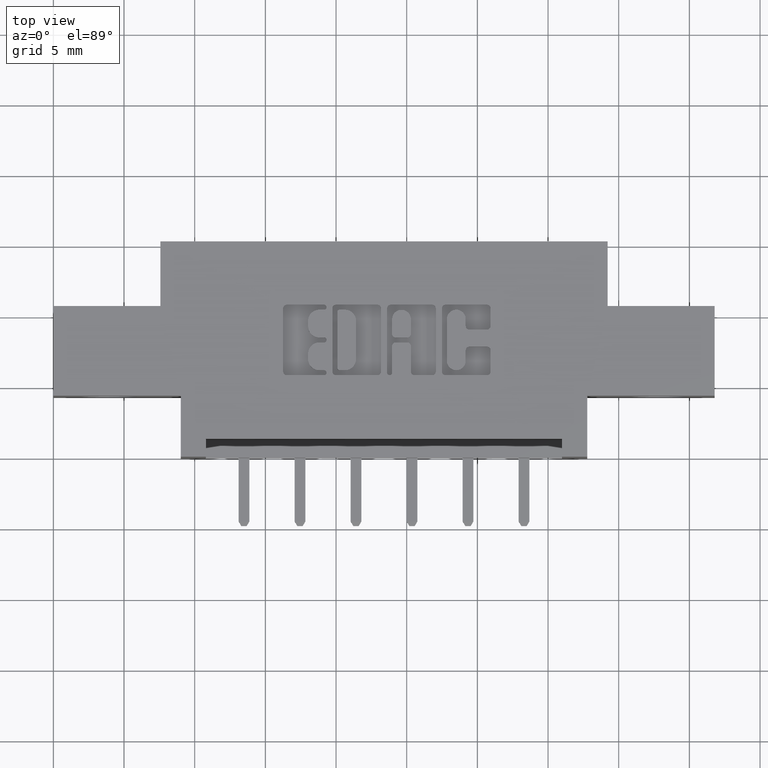
[diagram: clean part render]
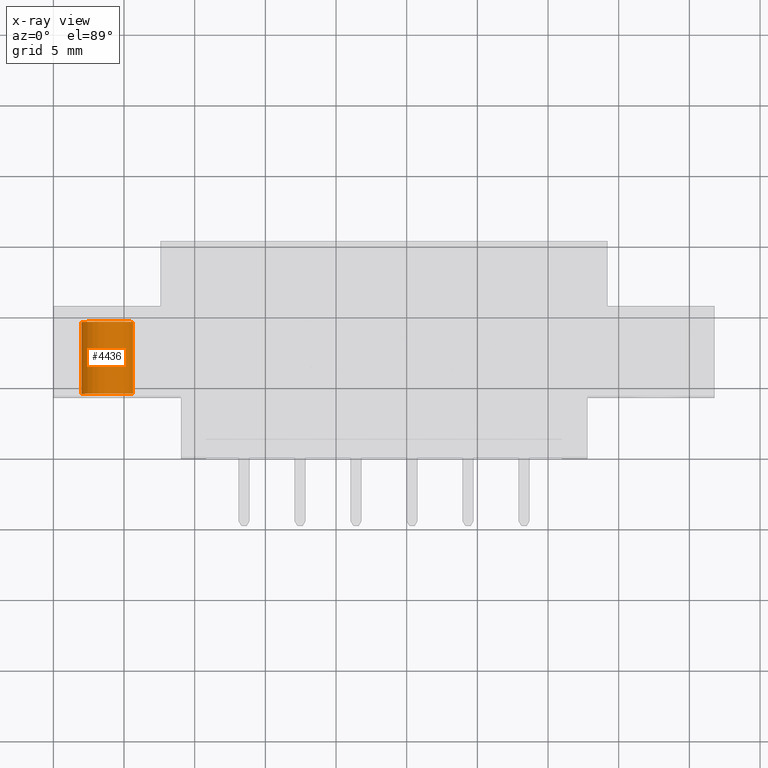
[diagram: x-ray — body ghosted, one internal face saturated and labeled with its STEP entity id]
A machine part, top view, then the same camera in x-ray: the body is ghosted and one INTERNAL B-rep face — a face not visible from any outside direction — is saturated and labeled: STEP entity #4436.
In plain terms, the highlighted cylindrical surface (edge-blend (fillet) strip) has radius 1.9685 mm, axis along (0, 1, -0).
Its self-contained STEP definition (entity closure, byte-faithful):
#225 = VERTEX_POINT ( 'NONE', #2949 ) ;
#473 = CIRCLE ( 'NONE', #1931, 0.07749999999999999900 ) ;
#480 = DIRECTION ( 'NONE',  ( -0.0000000000000000000, -1.000000000000000000, -0.0000000000000000000 ) ) ;
#649 = CARTESIAN_POINT ( 'NONE',  ( 9.491012693391986400E-018, 0.04000000000000000100, 0.07749999999999999900 ) ) ;
#1584 = VERTEX_POINT ( 'NONE', #6436 ) ;
#1657 = VERTEX_POINT ( 'NONE', #7367 ) ;
#1808 = DIRECTION ( 'NONE',  ( 0.0000000000000000000, 0.0000000000000000000, 1.000000000000000000 ) ) ;
#1850 = EDGE_CURVE ( 'NONE', #5542, #1584, #473, .T. ) ;
#1931 = AXIS2_PLACEMENT_3D ( 'NONE', #6718, #6749, #1808 ) ;
#2036 = CARTESIAN_POINT ( 'NONE',  ( 9.491012693391986400E-018, 0.2400000000000000500, 0.07749999999999999900 ) ) ;
#2251 = DIRECTION ( 'NONE',  ( 0.0000000000000000000, 1.000000000000000000, 0.0000000000000000000 ) ) ;
#2505 = ORIENTED_EDGE ( 'NONE', *, *, #1850, .T. ) ;
#2666 = CIRCLE ( 'NONE', #8344, 0.07749999999999999900 ) ;
#2743 = LINE ( 'NONE', #2036, #7060 ) ;
#2751 = ORIENTED_EDGE ( 'NONE', *, *, #10404, .F. ) ;
#2949 = CARTESIAN_POINT ( 'NONE',  ( 9.491012693391986400E-018, 0.2400000000000000500, 0.07749999999999999900 ) ) ;
#3457 = AXIS2_PLACEMENT_3D ( 'NONE', #8616, #480, #3764 ) ;
#3471 = EDGE_LOOP ( 'NONE', ( #7639, #9724, #2505, #2751 ) ) ;
#3740 = EDGE_CURVE ( 'NONE', #225, #1657, #2666, .T. ) ;
#3764 = DIRECTION ( 'NONE',  ( 0.0000000000000000000, 0.0000000000000000000, -1.000000000000000000 ) ) ;
#4315 = FACE_OUTER_BOUND ( 'NONE', #3471, .T. ) ;
#4436 = ADVANCED_FACE ( 'NONE', ( #4315 ), #6071, .T. ) ;
#4766 = VECTOR ( 'NONE', #7944, 39.37007874015748100 ) ;
#5542 = VERTEX_POINT ( 'NONE', #649 ) ;
#6071 = CYLINDRICAL_SURFACE ( 'NONE', #3457, 0.07749999999999999900 ) ;
#6436 = CARTESIAN_POINT ( 'NONE',  ( 0.0000000000000000000, 0.04000000000000000100, -0.07749999999999999900 ) ) ;
#6718 = CARTESIAN_POINT ( 'NONE',  ( 0.0000000000000000000, 0.04000000000000000100, 0.0000000000000000000 ) ) ;
#6749 = DIRECTION ( 'NONE',  ( 0.0000000000000000000, 1.000000000000000000, 0.0000000000000000000 ) ) ;
#7060 = VECTOR ( 'NONE', #9346, 39.37007874015748100 ) ;
#7071 = CARTESIAN_POINT ( 'NONE',  ( 0.0000000000000000000, 0.2400000000000000500, 0.0000000000000000000 ) ) ;
#7367 = CARTESIAN_POINT ( 'NONE',  ( 0.0000000000000000000, 0.2400000000000000500, -0.07749999999999999900 ) ) ;
#7639 = ORIENTED_EDGE ( 'NONE', *, *, #3740, .F. ) ;
#7944 = DIRECTION ( 'NONE',  ( -0.0000000000000000000, -1.000000000000000000, -0.0000000000000000000 ) ) ;
#8344 = AXIS2_PLACEMENT_3D ( 'NONE', #7071, #2251, #8864 ) ;
#8616 = CARTESIAN_POINT ( 'NONE',  ( 0.0000000000000000000, 0.2400000000000000500, 0.0000000000000000000 ) ) ;
#8864 = DIRECTION ( 'NONE',  ( 0.0000000000000000000, 0.0000000000000000000, 1.000000000000000000 ) ) ;
#9116 = LINE ( 'NONE', #9722, #4766 ) ;
#9346 = DIRECTION ( 'NONE',  ( -0.0000000000000000000, -1.000000000000000000, -0.0000000000000000000 ) ) ;
#9722 = CARTESIAN_POINT ( 'NONE',  ( 0.0000000000000000000, 0.2400000000000000500, -0.07749999999999999900 ) ) ;
#9723 = EDGE_CURVE ( 'NONE', #225, #5542, #2743, .T. ) ;
#9724 = ORIENTED_EDGE ( 'NONE', *, *, #9723, .T. ) ;
#10404 = EDGE_CURVE ( 'NONE', #1657, #1584, #9116, .T. ) ;